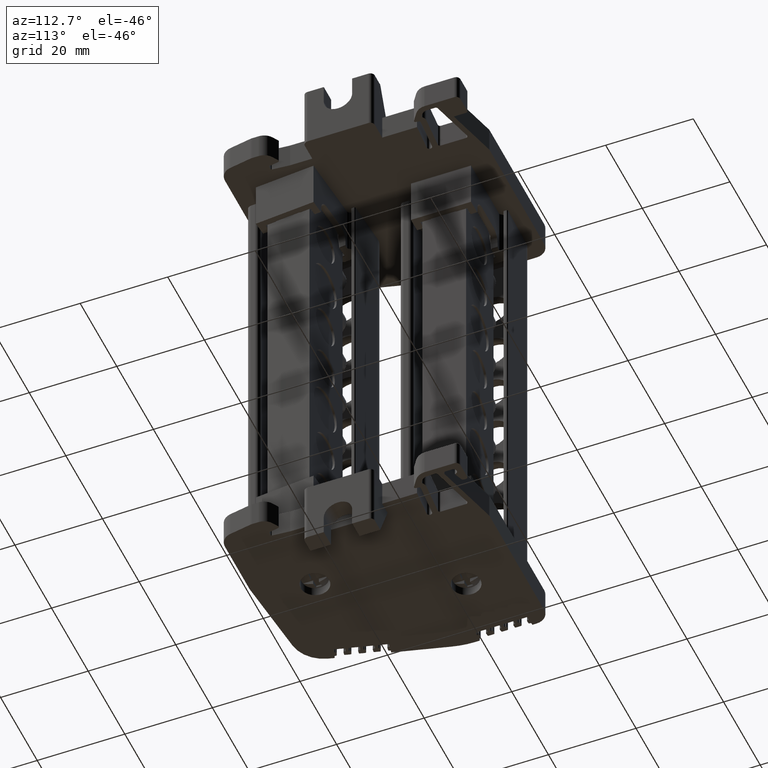
[diagram: clean part render]
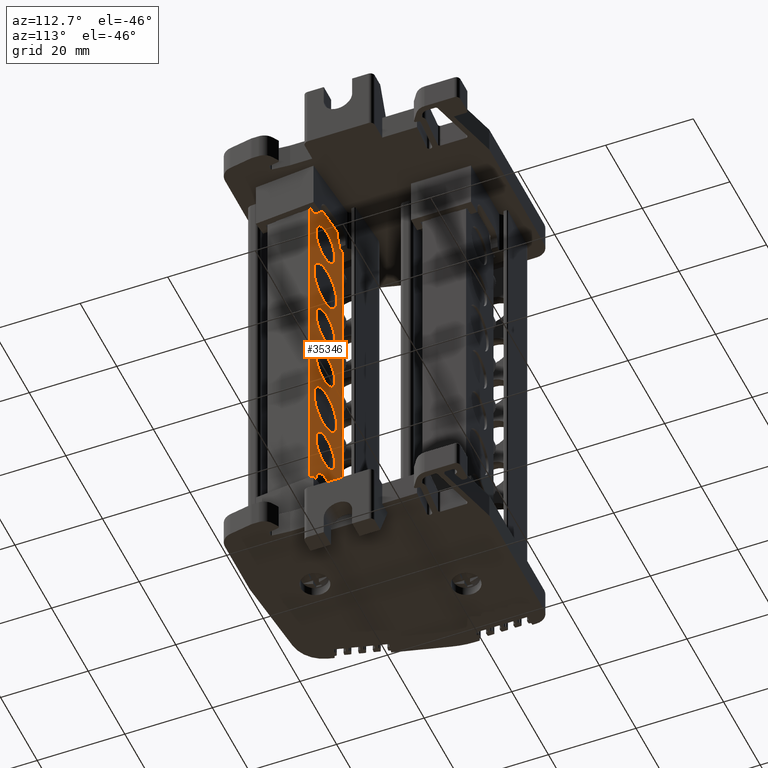
[diagram: same view with one face highlighted and labeled with its STEP entity id]
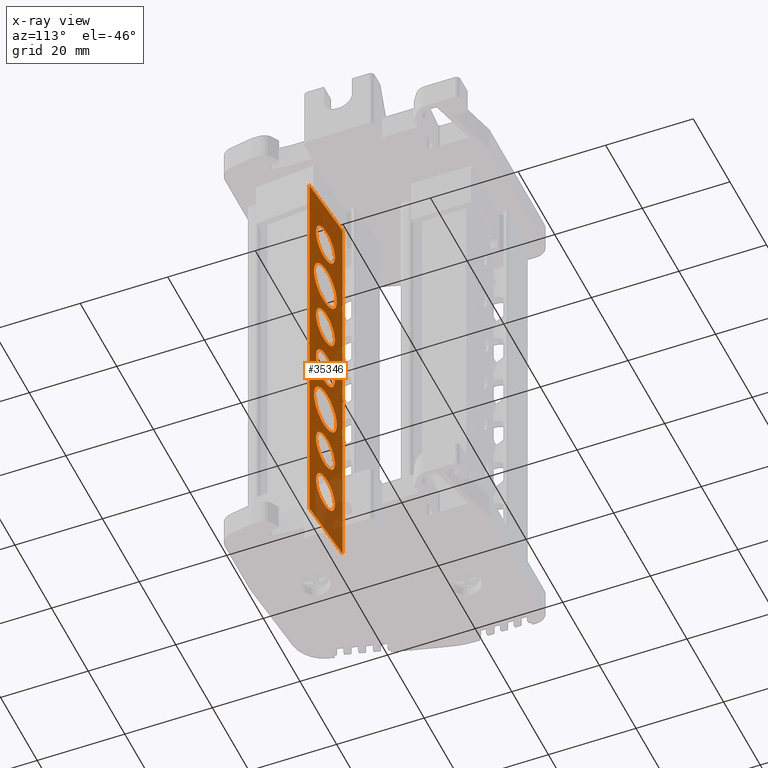
[diagram: x-ray of the same camera — body ghosted, the highlighted face saturated]
A machine part, auxiliary view. The second image highlights one B-rep face of the part: STEP entity #35346.
The next image is the same camera in x-ray: the body ghosted, the highlighted face saturated — about 13% of this face is hidden behind the body in this view.
In plain terms, the highlighted planar face has unit normal (0.0872, 0.9962, 0).
Its self-contained STEP definition (entity closure, byte-faithful):
#628 = CARTESIAN_POINT ( 'NONE',  ( 1907.368470379258500, 773.6351631880770600, 9.520455880791978100 ) ) ;
#634 = CARTESIAN_POINT ( 'NONE',  ( 1907.389909289660000, 773.6332875264585000, 15.25657608941911100 ) ) ;
#659 = CARTESIAN_POINT ( 'NONE',  ( 1907.368470379258500, 773.6351631880770600, 102.0084946184816300 ) ) ;
#682 = CARTESIAN_POINT ( 'NONE',  ( 1907.368470379257600, 773.6351631880771700, 15.01059217916254900 ) ) ;
#700 = CARTESIAN_POINT ( 'NONE',  ( 1907.389909289660000, 773.6332875264585000, 101.7625107082238300 ) ) ;
#716 = CARTESIAN_POINT ( 'NONE',  ( 1907.368470379258500, 773.6351631880770600, 107.4986309168521800 ) ) ;
#718 = CARTESIAN_POINT ( 'NONE',  ( 1892.446988818283700, 774.9406236676751400, 9.520455880791978100 ) ) ;
#719 = CARTESIAN_POINT ( 'NONE',  ( 1892.446988818283700, 774.9406236676751400, 107.4986309168521800 ) ) ;
#2467 = CARTESIAN_POINT ( 'NONE',  ( 1900.217307463399500, 774.2608088742425700, 91.87045588079198000 ) ) ;
#2471 = CARTESIAN_POINT ( 'NONE',  ( 1900.217307463399500, 774.2608088742425700, 78.47045588079203100 ) ) ;
#2477 = CARTESIAN_POINT ( 'NONE',  ( 1900.217307463399500, 774.2608088742425700, 40.97045588079194500 ) ) ;
#2480 = CARTESIAN_POINT ( 'NONE',  ( 1900.217307463399500, 774.2608088742425700, 16.87045588079203600 ) ) ;
#2487 = CARTESIAN_POINT ( 'NONE',  ( 1900.217307463399500, 774.2608088742425700, 29.37045588079198300 ) ) ;
#2515 = CARTESIAN_POINT ( 'NONE',  ( 1900.217307463399500, 774.2608088742425700, 25.37045588079202900 ) ) ;
#2518 = CARTESIAN_POINT ( 'NONE',  ( 1900.217307463399500, 774.2608088742425700, 54.37045588079189400 ) ) ;
#2531 = CARTESIAN_POINT ( 'NONE',  ( 1900.217307463399500, 774.2608088742425700, 37.87045588079199400 ) ) ;
#2536 = CARTESIAN_POINT ( 'NONE',  ( 1900.217307463399500, 774.2608088742425700, 66.87045588079207900 ) ) ;
#2541 = CARTESIAN_POINT ( 'NONE',  ( 1900.217307463399500, 774.2608088742425700, 62.87045588079190100 ) ) ;
#2576 = CARTESIAN_POINT ( 'NONE',  ( 1900.217307463399500, 774.2608088742425700, 100.3704558807919900 ) ) ;
#2612 = CARTESIAN_POINT ( 'NONE',  ( 1900.217307463399500, 774.2608088742425700, 51.27045588079194300 ) ) ;
#2641 = CARTESIAN_POINT ( 'NONE',  ( 1900.217307463399500, 774.2608088742425700, 75.37045588079207900 ) ) ;
#2759 = CARTESIAN_POINT ( 'NONE',  ( 1900.217307463399500, 774.2608088742425700, 88.77045588079202800 ) ) ;
#10829 = VECTOR ( 'NONE', #14492, 1000.000000000000100 ) ;
#10849 = CIRCLE ( 'NONE', #10866, 4.250000000000003600 ) ;
#10866 = AXIS2_PLACEMENT_3D ( 'NONE', #14583, #14569, #14544 ) ;
#10875 = CIRCLE ( 'NONE', #10924, 4.250000000000003600 ) ;
#10881 = AXIS2_PLACEMENT_3D ( 'NONE', #14595, #14607, #14665 ) ;
#10894 = VECTOR ( 'NONE', #14760, 1000.000000000000000 ) ;
#10895 = VECTOR ( 'NONE', #14748, 1000.000000000000000 ) ;
#10898 = CIRCLE ( 'NONE', #10881, 4.250000000000003600 ) ;
#10899 = CIRCLE ( 'NONE', #10915, 5.150000000000002100 ) ;
#10915 = AXIS2_PLACEMENT_3D ( 'NONE', #14694, #14693, #14689 ) ;
#10924 = AXIS2_PLACEMENT_3D ( 'NONE', #14692, #14688, #14703 ) ;
#10935 = CIRCLE ( 'NONE', #10968, 5.150000000000002100 ) ;
#10968 = AXIS2_PLACEMENT_3D ( 'NONE', #14859, #14877, #14876 ) ;
#10971 = VECTOR ( 'NONE', #14875, 1000.000000000000100 ) ;
#10999 = CIRCLE ( 'NONE', #11017, 4.250000000000003600 ) ;
#11003 = VECTOR ( 'NONE', #14896, 1000.000000000000000 ) ;
#11006 = VECTOR ( 'NONE', #14677, 1000.000000000000000 ) ;
#11014 = VECTOR ( 'NONE', #14921, 1000.000000000000000 ) ;
#11017 = AXIS2_PLACEMENT_3D ( 'NONE', #15129, #15233, #14437 ) ;
#11034 = CIRCLE ( 'NONE', #11042, 4.249999999999996400 ) ;
#11042 = AXIS2_PLACEMENT_3D ( 'NONE', #15816, #15817, #15820 ) ;
#11050 = VECTOR ( 'NONE', #14926, 1000.000000000000000 ) ;
#11518 = AXIS2_PLACEMENT_3D ( 'NONE', #13647, #13626, #13637 ) ;
#13592 = FACE_BOUND ( 'NONE', #40137, .T. ) ;
#13597 = FACE_BOUND ( 'NONE', #40140, .T. ) ;
#13612 = FACE_BOUND ( 'NONE', #40157, .T. ) ;
#13619 = FACE_BOUND ( 'NONE', #40148, .T. ) ;
#13624 = FACE_BOUND ( 'NONE', #40114, .T. ) ;
#13626 = DIRECTION ( 'NONE',  ( 0.08715574274777394800, 0.9961946980917354400, 0.0000000000000000000 ) ) ;
#13635 = PLANE ( 'NONE',  #11518 ) ;
#13637 = DIRECTION ( 'NONE',  ( 0.0000000000000000000, 0.0000000000000000000, -1.000000000000000000 ) ) ;
#13642 = FACE_BOUND ( 'NONE', #40149, .T. ) ;
#13643 = FACE_BOUND ( 'NONE', #40135, .T. ) ;
#13647 = CARTESIAN_POINT ( 'NONE',  ( 1892.446988818283700, 774.9406236676751400, 9.520455880791978100 ) ) ;
#13653 = FACE_OUTER_BOUND ( 'NONE', #40145, .T. ) ;
#14437 = DIRECTION ( 'NONE',  ( 0.0000000000000000000, 0.0000000000000000000, 1.000000000000000000 ) ) ;
#14473 = LINE ( 'NONE', #14475, #10829 ) ;
#14475 = CARTESIAN_POINT ( 'NONE',  ( 1906.780262777334200, 773.6866246850452200, 8.261666825770550600 ) ) ;
#14492 = DIRECTION ( 'NONE',  ( 0.08682408883346434700, -0.007596123493906066000, 0.9961946980917455500 ) ) ;
#14544 = DIRECTION ( 'NONE',  ( 0.0000000000000000000, 0.0000000000000000000, 1.000000000000000000 ) ) ;
#14569 = DIRECTION ( 'NONE',  ( -0.08715574274777394800, -0.9961946980917354400, 0.0000000000000000000 ) ) ;
#14573 = CARTESIAN_POINT ( 'NONE',  ( 1907.389909289660000, 773.6332875264585000, 9.520455880791978100 ) ) ;
#14583 = CARTESIAN_POINT ( 'NONE',  ( 1900.217307463399500, 774.2608088742425700, 71.12045588079207900 ) ) ;
#14595 = CARTESIAN_POINT ( 'NONE',  ( 1900.217307463399500, 774.2608088742425700, 96.12045588079199400 ) ) ;
#14607 = DIRECTION ( 'NONE',  ( -0.08715574274777394800, -0.9961946980917354400, 0.0000000000000000000 ) ) ;
#14665 = DIRECTION ( 'NONE',  ( 0.0000000000000000000, 0.0000000000000000000, 1.000000000000000000 ) ) ;
#14677 = DIRECTION ( 'NONE',  ( 0.9961946980917354400, -0.08715574274777394800, -0.0000000000000000000 ) ) ;
#14688 = DIRECTION ( 'NONE',  ( -0.08715574274777394800, -0.9961946980917354400, 0.0000000000000000000 ) ) ;
#14689 = DIRECTION ( 'NONE',  ( 0.0000000000000000000, 0.0000000000000000000, 1.000000000000000000 ) ) ;
#14692 = CARTESIAN_POINT ( 'NONE',  ( 1900.217307463399500, 774.2608088742425700, 58.62045588079190100 ) ) ;
#14693 = DIRECTION ( 'NONE',  ( -0.08715574274777394800, -0.9961946980917354400, 0.0000000000000000000 ) ) ;
#14694 = CARTESIAN_POINT ( 'NONE',  ( 1900.217307463399500, 774.2608088742425700, 83.62045588079203600 ) ) ;
#14703 = DIRECTION ( 'NONE',  ( 0.0000000000000000000, 0.0000000000000000000, 1.000000000000000000 ) ) ;
#14705 = LINE ( 'NONE', #14724, #10894 ) ;
#14724 = CARTESIAN_POINT ( 'NONE',  ( 1892.446988818283700, 774.9406236676751400, 9.520455880791978100 ) ) ;
#14748 = DIRECTION ( 'NONE',  ( 0.9961946980917354400, -0.08715574274777394800, -3.830915663953535900E-017 ) ) ;
#14756 = CARTESIAN_POINT ( 'NONE',  ( 1892.446988818283700, 774.9406236676751400, 107.4986309168521800 ) ) ;
#14758 = LINE ( 'NONE', #14756, #10895 ) ;
#14760 = DIRECTION ( 'NONE',  ( 0.0000000000000000000, 0.0000000000000000000, -1.000000000000000000 ) ) ;
#14859 = CARTESIAN_POINT ( 'NONE',  ( 1900.217307463399500, 774.2608088742425700, 46.12045588079194400 ) ) ;
#14874 = CARTESIAN_POINT ( 'NONE',  ( 1915.254757357846300, 772.9452024801376000, 11.52349925309387600 ) ) ;
#14875 = DIRECTION ( 'NONE',  ( -0.08682408883346434700, 0.007596123493906066000, 0.9961946980917455500 ) ) ;
#14876 = DIRECTION ( 'NONE',  ( 0.0000000000000000000, 0.0000000000000000000, 1.000000000000000000 ) ) ;
#14877 = DIRECTION ( 'NONE',  ( -0.08715574274777394800, -0.9961946980917354400, 0.0000000000000000000 ) ) ;
#14881 = LINE ( 'NONE', #14874, #10971 ) ;
#14895 = LINE ( 'NONE', #14936, #11050 ) ;
#14896 = DIRECTION ( 'NONE',  ( 0.0000000000000000000, 0.0000000000000000000, 1.000000000000000000 ) ) ;
#14905 = LINE ( 'NONE', #14927, #11003 ) ;
#14917 = LINE ( 'NONE', #14920, #11014 ) ;
#14920 = CARTESIAN_POINT ( 'NONE',  ( 1907.368470379258500, 773.6351631880770600, 9.520455880791971000 ) ) ;
#14921 = DIRECTION ( 'NONE',  ( 5.004797158986822300E-016, -4.378630146586845200E-017, 1.000000000000000000 ) ) ;
#14926 = DIRECTION ( 'NONE',  ( -5.004797158986822300E-016, 4.378630146586845200E-017, 1.000000000000000000 ) ) ;
#14927 = CARTESIAN_POINT ( 'NONE',  ( 1907.389909289660000, 773.6332875264585000, 9.520455880791978100 ) ) ;
#14936 = CARTESIAN_POINT ( 'NONE',  ( 1907.368470379258500, 773.6351631880770600, 9.520455880791985200 ) ) ;
#14989 = LINE ( 'NONE', #14573, #11006 ) ;
#15129 = CARTESIAN_POINT ( 'NONE',  ( 1900.217307463399500, 774.2608088742425700, 33.62045588079198700 ) ) ;
#15233 = DIRECTION ( 'NONE',  ( -0.08715574274777394800, -0.9961946980917354400, 0.0000000000000000000 ) ) ;
#15816 = CARTESIAN_POINT ( 'NONE',  ( 1900.217307463399500, 774.2608088742425700, 21.12045588079203300 ) ) ;
#15817 = DIRECTION ( 'NONE',  ( -0.08715574274777394800, -0.9961946980917354400, 0.0000000000000000000 ) ) ;
#15820 = DIRECTION ( 'NONE',  ( 0.0000000000000000000, 0.0000000000000000000, 1.000000000000000000 ) ) ;
#22563 = AXIS2_PLACEMENT_3D ( 'NONE', #23274, #23239, #23272 ) ;
#22565 = CIRCLE ( 'NONE', #22581, 4.250000000000003600 ) ;
#22581 = AXIS2_PLACEMENT_3D ( 'NONE', #23270, #23295, #23305 ) ;
#22592 = AXIS2_PLACEMENT_3D ( 'NONE', #23171, #23184, #23185 ) ;
#22596 = CIRCLE ( 'NONE', #22563, 5.150000000000002100 ) ;
#22600 = CIRCLE ( 'NONE', #22592, 4.250000000000003600 ) ;
#22631 = AXIS2_PLACEMENT_3D ( 'NONE', #23379, #23390, #23385 ) ;
#22662 = CIRCLE ( 'NONE', #22665, 4.250000000000003600 ) ;
#22665 = AXIS2_PLACEMENT_3D ( 'NONE', #23398, #23370, #23400 ) ;
#22677 = CIRCLE ( 'NONE', #22631, 5.150000000000002100 ) ;
#22703 = AXIS2_PLACEMENT_3D ( 'NONE', #23572, #23574, #23575 ) ;
#22742 = CIRCLE ( 'NONE', #22703, 4.249999999999996400 ) ;
#22747 = AXIS2_PLACEMENT_3D ( 'NONE', #23589, #23560, #23597 ) ;
#22748 = CIRCLE ( 'NONE', #22747, 4.250000000000003600 ) ;
#23171 = CARTESIAN_POINT ( 'NONE',  ( 1900.217307463399500, 774.2608088742425700, 96.12045588079199400 ) ) ;
#23184 = DIRECTION ( 'NONE',  ( -0.08715574274777394800, -0.9961946980917354400, 0.0000000000000000000 ) ) ;
#23185 = DIRECTION ( 'NONE',  ( 0.0000000000000000000, 0.0000000000000000000, 1.000000000000000000 ) ) ;
#23239 = DIRECTION ( 'NONE',  ( -0.08715574274777394800, -0.9961946980917354400, 0.0000000000000000000 ) ) ;
#23270 = CARTESIAN_POINT ( 'NONE',  ( 1900.217307463399500, 774.2608088742425700, 71.12045588079207900 ) ) ;
#23272 = DIRECTION ( 'NONE',  ( 0.0000000000000000000, 0.0000000000000000000, 1.000000000000000000 ) ) ;
#23274 = CARTESIAN_POINT ( 'NONE',  ( 1900.217307463399500, 774.2608088742425700, 83.62045588079203600 ) ) ;
#23295 = DIRECTION ( 'NONE',  ( -0.08715574274777394800, -0.9961946980917354400, 0.0000000000000000000 ) ) ;
#23305 = DIRECTION ( 'NONE',  ( 0.0000000000000000000, 0.0000000000000000000, 1.000000000000000000 ) ) ;
#23370 = DIRECTION ( 'NONE',  ( -0.08715574274777394800, -0.9961946980917354400, 0.0000000000000000000 ) ) ;
#23379 = CARTESIAN_POINT ( 'NONE',  ( 1900.217307463399500, 774.2608088742425700, 46.12045588079194400 ) ) ;
#23385 = DIRECTION ( 'NONE',  ( 0.0000000000000000000, 0.0000000000000000000, 1.000000000000000000 ) ) ;
#23390 = DIRECTION ( 'NONE',  ( -0.08715574274777394800, -0.9961946980917354400, 0.0000000000000000000 ) ) ;
#23398 = CARTESIAN_POINT ( 'NONE',  ( 1900.217307463399500, 774.2608088742425700, 58.62045588079190100 ) ) ;
#23400 = DIRECTION ( 'NONE',  ( 0.0000000000000000000, 0.0000000000000000000, 1.000000000000000000 ) ) ;
#23560 = DIRECTION ( 'NONE',  ( -0.08715574274777394800, -0.9961946980917354400, 0.0000000000000000000 ) ) ;
#23572 = CARTESIAN_POINT ( 'NONE',  ( 1900.217307463399500, 774.2608088742425700, 21.12045588079203300 ) ) ;
#23574 = DIRECTION ( 'NONE',  ( -0.08715574274777394800, -0.9961946980917354400, 0.0000000000000000000 ) ) ;
#23575 = DIRECTION ( 'NONE',  ( 0.0000000000000000000, 0.0000000000000000000, 1.000000000000000000 ) ) ;
#23589 = CARTESIAN_POINT ( 'NONE',  ( 1900.217307463399500, 774.2608088742425700, 33.62045588079198700 ) ) ;
#23597 = DIRECTION ( 'NONE',  ( 0.0000000000000000000, 0.0000000000000000000, 1.000000000000000000 ) ) ;
#35346 = ADVANCED_FACE ( 'NONE', ( #13653, #13592, #13624, #13612, #13597, #13642, #13619, #13643 ), #13635, .T. ) ;
#35756 = EDGE_CURVE ( 'NONE', #57408, #57319, #14473, .T. ) ;
#35779 = EDGE_CURVE ( 'NONE', #58267, #58234, #10849, .T. ) ;
#35802 = EDGE_CURVE ( 'NONE', #58311, #58252, #10898, .T. ) ;
#35824 = EDGE_CURVE ( 'NONE', #58240, #58262, #10875, .T. ) ;
#35825 = EDGE_CURVE ( 'NONE', #58335, #58222, #10899, .T. ) ;
#35832 = EDGE_CURVE ( 'NONE', #57429, #57424, #14705, .T. ) ;
#35834 = EDGE_CURVE ( 'NONE', #57429, #57400, #14758, .T. ) ;
#35880 = EDGE_CURVE ( 'NONE', #58272, #58253, #10935, .T. ) ;
#35884 = EDGE_CURVE ( 'NONE', #57457, #57303, #14881, .T. ) ;
#35893 = EDGE_CURVE ( 'NONE', #57319, #57457, #14905, .T. ) ;
#35896 = EDGE_CURVE ( 'NONE', #57303, #57400, #14895, .T. ) ;
#35901 = EDGE_CURVE ( 'NONE', #57310, #57408, #14917, .T. ) ;
#35903 = EDGE_CURVE ( 'NONE', #58229, #58225, #10999, .T. ) ;
#35904 = EDGE_CURVE ( 'NONE', #57424, #57310, #14989, .T. ) ;
#35915 = EDGE_CURVE ( 'NONE', #58227, #58261, #11034, .T. ) ;
#40114 = EDGE_LOOP ( 'NONE', ( #57017, #56985 ) ) ;
#40135 = EDGE_LOOP ( 'NONE', ( #56899, #57019 ) ) ;
#40137 = EDGE_LOOP ( 'NONE', ( #57015, #57055 ) ) ;
#40140 = EDGE_LOOP ( 'NONE', ( #56965, #56989 ) ) ;
#40145 = EDGE_LOOP ( 'NONE', ( #56937, #56898, #56869, #56901, #56941, #56843, #56848, #56849 ) ) ;
#40148 = EDGE_LOOP ( 'NONE', ( #56853, #56875 ) ) ;
#40149 = EDGE_LOOP ( 'NONE', ( #56958, #56992 ) ) ;
#40157 = EDGE_LOOP ( 'NONE', ( #56954, #56987 ) ) ;
#41764 = EDGE_CURVE ( 'NONE', #58252, #58311, #22600, .T. ) ;
#41782 = EDGE_CURVE ( 'NONE', #58222, #58335, #22596, .T. ) ;
#41793 = EDGE_CURVE ( 'NONE', #58234, #58267, #22565, .T. ) ;
#41823 = EDGE_CURVE ( 'NONE', #58262, #58240, #22662, .T. ) ;
#41824 = EDGE_CURVE ( 'NONE', #58253, #58272, #22677, .T. ) ;
#41863 = EDGE_CURVE ( 'NONE', #58261, #58227, #22742, .T. ) ;
#41865 = EDGE_CURVE ( 'NONE', #58225, #58229, #22748, .T. ) ;
#56843 = ORIENTED_EDGE ( 'NONE', *, *, #35896, .F. ) ;
#56848 = ORIENTED_EDGE ( 'NONE', *, *, #35884, .F. ) ;
#56849 = ORIENTED_EDGE ( 'NONE', *, *, #35893, .F. ) ;
#56853 = ORIENTED_EDGE ( 'NONE', *, *, #35779, .T. ) ;
#56869 = ORIENTED_EDGE ( 'NONE', *, *, #35904, .F. ) ;
#56875 = ORIENTED_EDGE ( 'NONE', *, *, #41793, .T. ) ;
#56898 = ORIENTED_EDGE ( 'NONE', *, *, #35901, .F. ) ;
#56899 = ORIENTED_EDGE ( 'NONE', *, *, #35824, .T. ) ;
#56901 = ORIENTED_EDGE ( 'NONE', *, *, #35832, .F. ) ;
#56937 = ORIENTED_EDGE ( 'NONE', *, *, #35756, .F. ) ;
#56941 = ORIENTED_EDGE ( 'NONE', *, *, #35834, .T. ) ;
#56954 = ORIENTED_EDGE ( 'NONE', *, *, #35880, .T. ) ;
#56958 = ORIENTED_EDGE ( 'NONE', *, *, #35825, .T. ) ;
#56965 = ORIENTED_EDGE ( 'NONE', *, *, #35802, .T. ) ;
#56985 = ORIENTED_EDGE ( 'NONE', *, *, #41865, .T. ) ;
#56987 = ORIENTED_EDGE ( 'NONE', *, *, #41824, .T. ) ;
#56989 = ORIENTED_EDGE ( 'NONE', *, *, #41764, .T. ) ;
#56992 = ORIENTED_EDGE ( 'NONE', *, *, #41782, .T. ) ;
#57015 = ORIENTED_EDGE ( 'NONE', *, *, #35915, .T. ) ;
#57017 = ORIENTED_EDGE ( 'NONE', *, *, #35903, .T. ) ;
#57019 = ORIENTED_EDGE ( 'NONE', *, *, #41823, .T. ) ;
#57055 = ORIENTED_EDGE ( 'NONE', *, *, #41863, .T. ) ;
#57303 = VERTEX_POINT ( 'NONE', #659 ) ;
#57310 = VERTEX_POINT ( 'NONE', #628 ) ;
#57319 = VERTEX_POINT ( 'NONE', #634 ) ;
#57400 = VERTEX_POINT ( 'NONE', #716 ) ;
#57408 = VERTEX_POINT ( 'NONE', #682 ) ;
#57424 = VERTEX_POINT ( 'NONE', #718 ) ;
#57429 = VERTEX_POINT ( 'NONE', #719 ) ;
#57457 = VERTEX_POINT ( 'NONE', #700 ) ;
#58222 = VERTEX_POINT ( 'NONE', #2471 ) ;
#58225 = VERTEX_POINT ( 'NONE', #2487 ) ;
#58227 = VERTEX_POINT ( 'NONE', #2515 ) ;
#58229 = VERTEX_POINT ( 'NONE', #2531 ) ;
#58234 = VERTEX_POINT ( 'NONE', #2536 ) ;
#58240 = VERTEX_POINT ( 'NONE', #2541 ) ;
#58252 = VERTEX_POINT ( 'NONE', #2467 ) ;
#58253 = VERTEX_POINT ( 'NONE', #2477 ) ;
#58261 = VERTEX_POINT ( 'NONE', #2480 ) ;
#58262 = VERTEX_POINT ( 'NONE', #2518 ) ;
#58267 = VERTEX_POINT ( 'NONE', #2641 ) ;
#58272 = VERTEX_POINT ( 'NONE', #2612 ) ;
#58311 = VERTEX_POINT ( 'NONE', #2576 ) ;
#58335 = VERTEX_POINT ( 'NONE', #2759 ) ;